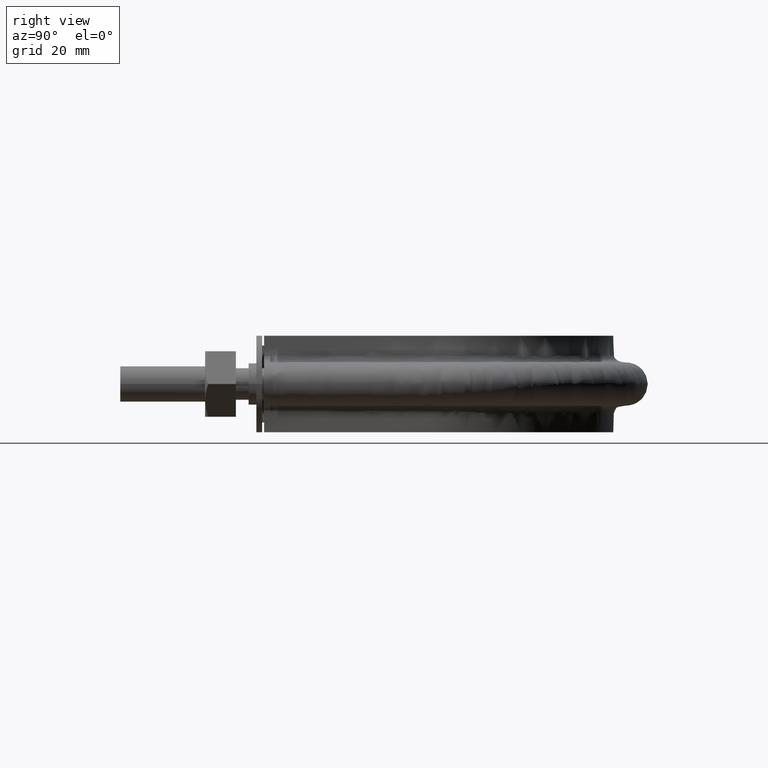
[diagram: clean part render]
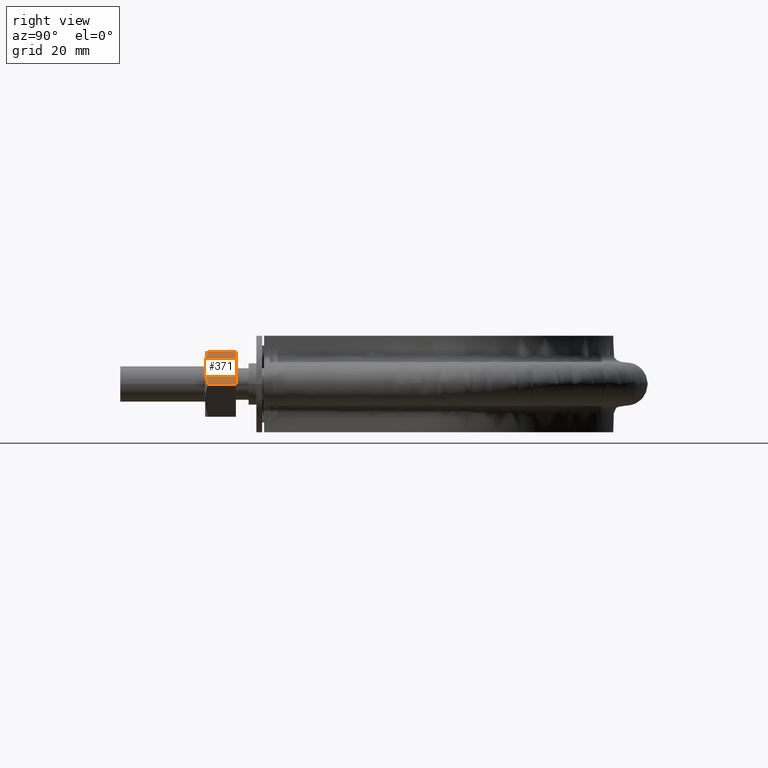
[diagram: same view with one face highlighted and labeled with its STEP entity id]
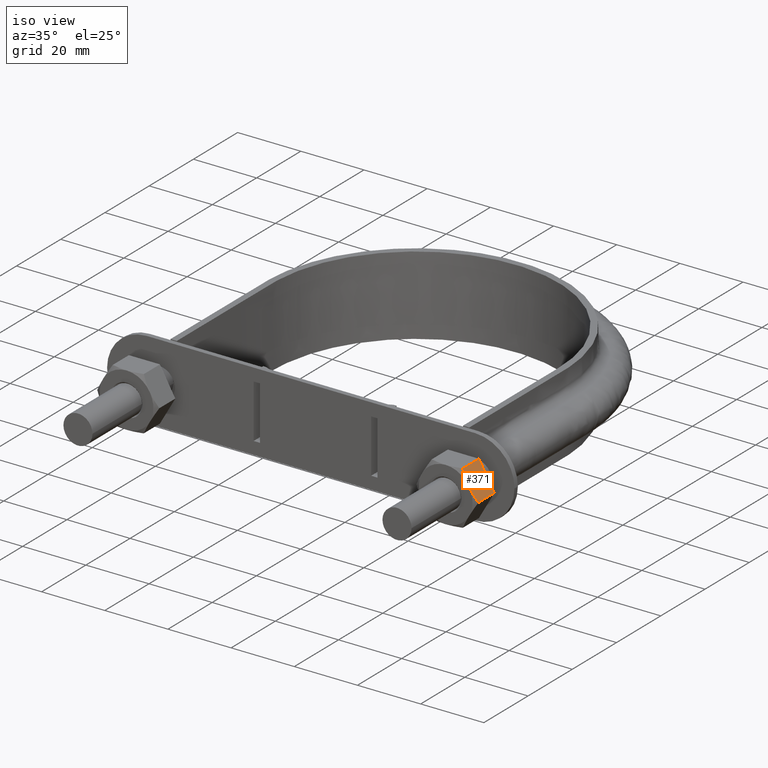
[diagram: same view with one face highlighted and labeled with its STEP entity id]
A machine part, right view. The second image highlights one B-rep face of the part: STEP entity #371.
A second angle (iso view) of the same face is appended — the face is thin or edge-on in the first view.
In plain terms, the highlighted planar face has unit normal (-0.866, 0, -0.5).
Its self-contained STEP definition (entity closure, byte-faithful):
#371 = ADVANCED_FACE( '', ( #617 ), #618, .F. );
#617 = FACE_OUTER_BOUND( '', #1688, .T. );
#618 = PLANE( '', #1689 );
#1688 = EDGE_LOOP( '', ( #2474, #2475, #2476, #2477, #2478 ) );
#1689 = AXIS2_PLACEMENT_3D( '', #2479, #2480, #2481 );
#2474 = ORIENTED_EDGE( '', *, *, #2765, .F. );
#2475 = ORIENTED_EDGE( '', *, *, #2766, .F. );
#2476 = ORIENTED_EDGE( '', *, *, #2764, .F. );
#2477 = ORIENTED_EDGE( '', *, *, #2744, .F. );
#2478 = ORIENTED_EDGE( '', *, *, #2767, .F. );
#2479 = CARTESIAN_POINT( '', ( 55.4074772886110, 30.0000000000000, 8.49999999971145 ) );
#2480 = DIRECTION( '', ( -0.866025403813784, 2.42723201258837E-016, -0.499999999949172 ) );
#2481 = DIRECTION( '', ( 2.44921270764475E-016, 1.00000000000000, 6.12303176911189E-017 ) );
#2744 = EDGE_CURVE( '', #3126, #3128, #3129, .T. );
#2764 = EDGE_CURVE( '', #3128, #3156, #3158, .F. );
#2765 = EDGE_CURVE( '', #3096, #3159, #3160, .T. );
#2766 = EDGE_CURVE( '', #3156, #3096, #3161, .T. );
#2767 = EDGE_CURVE( '', #3159, #3126, #3162, .T. );
#3096 = VERTEX_POINT( '', #3918 );
#3126 = VERTEX_POINT( '', #3965 );
#3128 = VERTEX_POINT( '', #3967 );
#3129 = LINE( '', #3968, #3969 );
#3156 = VERTEX_POINT( '', #4034 );
#3158 = LINE( '', #4036, #4037 );
#3159 = VERTEX_POINT( '', #4038 );
#3160 = B_SPLINE_CURVE_WITH_KNOTS( '', 3, ( #4039, #4040, #4041, #4042, #4043, #4044 ), .UNSPECIFIED., .F., .F., ( 4, 2, 4 ), ( 0.0156840426092164, 0.0181633795370688, 0.0206427164649213 ), .UNSPECIFIED. );
#3161 = B_SPLINE_CURVE_WITH_KNOTS( '', 3, ( #4045, #4046, #4047, #4048, #4049, #4050 ), .UNSPECIFIED., .F., .F., ( 4, 2, 4 ), ( 0.0107224888714701, 0.0132032657403432, 0.0156840426092164 ), .UNSPECIFIED. );
#3162 = LINE( '', #4051, #4052 );
#3918 = CARTESIAN_POINT( '', ( 57.8612159324172, 22.0000000000010, 4.24999999956797 ) );
#3965 = CARTESIAN_POINT( '', ( 55.4224662530140, 30.0000000000000, 8.47403835180919 ) );
#3967 = CARTESIAN_POINT( '', ( 60.2999656118204, 30.0000000000000, 0.0259616473267515 ) );
#3968 = CARTESIAN_POINT( '', ( 62.7612159319184, 30.0000000000000, -4.23704895780604 ) );
#3969 = VECTOR( '', #4384, 999.999999999958 );
#4034 = CARTESIAN_POINT( '', ( 60.2999656118204, 22.7505553499474, 0.0259616473267511 ) );
#4036 = CARTESIAN_POINT( '', ( 60.2999656118204, 30.0000000000000, 0.0259616473267515 ) );
#4037 = VECTOR( '', #4409, 999.999999999958 );
#4038 = CARTESIAN_POINT( '', ( 55.4224662530139, 22.7505553499474, 8.47403835180919 ) );
#4039 = CARTESIAN_POINT( '', ( 57.8612159324171, 22.0000000000014, 4.24999999956804 ) );
#4040 = CARTESIAN_POINT( '', ( 57.4439189120237, 22.0000000000014, 4.97277964083453 ) );
#4041 = CARTESIAN_POINT( '', ( 57.0316667959009, 22.0723104611277, 5.68682125158385 ) );
#4042 = CARTESIAN_POINT( '', ( 56.2198122211045, 22.3339943747746, 7.09299462367902 ) );
#4043 = CARTESIAN_POINT( '', ( 55.8192870265114, 22.5225028103106, 7.78672461051961 ) );
#4044 = CARTESIAN_POINT( '', ( 55.4224662530140, 22.7505553499478, 8.47403835180913 ) );
#4045 = CARTESIAN_POINT( '', ( 60.2999656118204, 22.7505553499478, 0.0259616473268037 ) );
#4046 = CARTESIAN_POINT( '', ( 59.9026528986799, 22.5222200930427, 0.714127453072412 ) );
#4047 = CARTESIAN_POINT( '', ( 59.5018172434121, 22.3336547117186, 1.40839517357545 ) );
#4048 = CARTESIAN_POINT( '', ( 58.6899065170559, 22.0721149177831, 2.81466580302526 ) );
#4049 = CARTESIAN_POINT( '', ( 58.2787553091804, 22.0000000000014, 3.52680058475536 ) );
#4050 = CARTESIAN_POINT( '', ( 57.8612159324171, 22.0000000000014, 4.24999999956804 ) );
#4051 = CARTESIAN_POINT( '', ( 55.4224662530140, 30.0000000000000, 8.47403835180919 ) );
#4052 = VECTOR( '', #4410, 999.999999999958 );
#4384 = DIRECTION( '', ( 0.499999999949173, -6.94336247656915E-017, -0.866025403813784 ) );
#4409 = DIRECTION( '', ( 2.44921270764475E-016, 1.00000000000000, 6.12303176911189E-017 ) );
#4410 = DIRECTION( '', ( 2.44921270764475E-016, 1.00000000000000, 6.12303176911189E-017 ) );